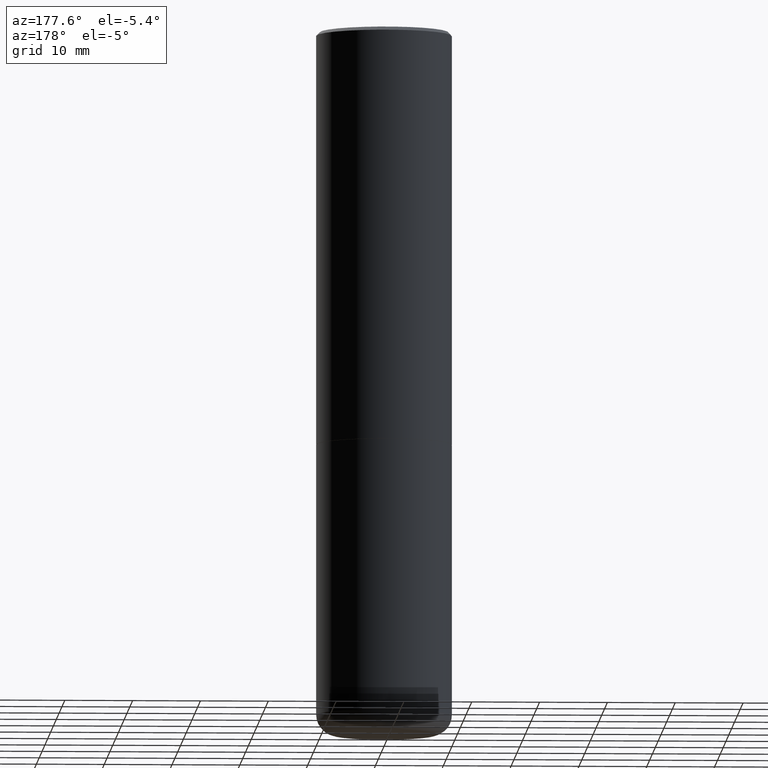
[diagram: clean part render]
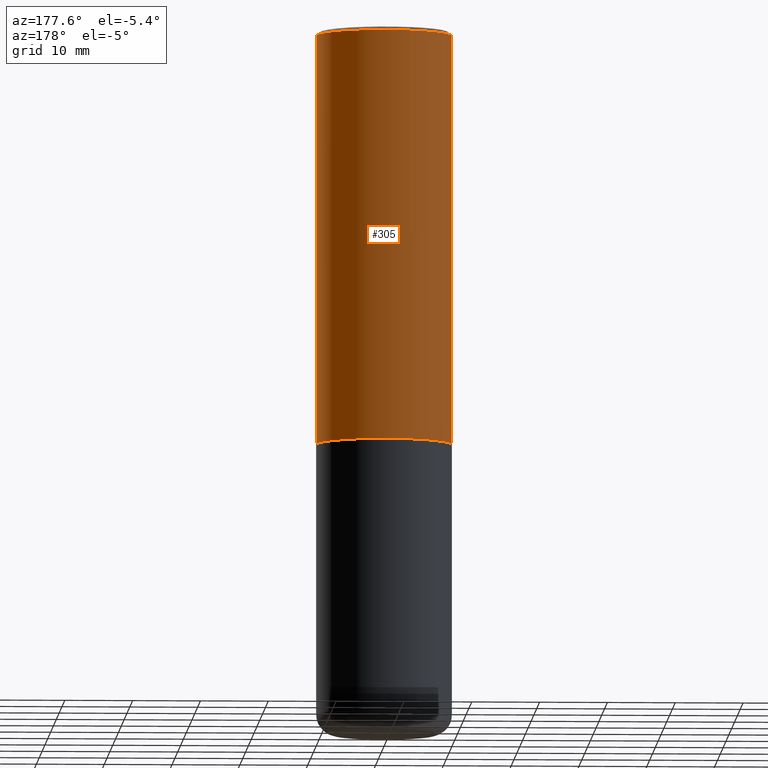
[diagram: same view with one face highlighted and labeled with its STEP entity id]
A machine part, auxiliary view. The second image highlights one B-rep face of the part: STEP entity #305.
In plain terms, the highlighted cylindrical surface (partial cylindrical patch) has radius 10 mm, axis along (-0, 0, 1).
Its self-contained STEP definition (entity closure, byte-faithful):
#6 = VECTOR ( 'NONE', #406, 39.37007874015748143 ) ;
#10 = DIRECTION ( 'NONE',  ( 1.000000000000000000, -6.982962677686265922E-15, 0.000000000000000000 ) ) ;
#22 = DIRECTION ( 'NONE',  ( 1.000000000000000000, -6.982962677686265922E-15, 0.000000000000000000 ) ) ;
#23 = EDGE_CURVE ( 'NONE', #192, #380, #417, .T. ) ;
#52 = CARTESIAN_POINT ( 'NONE',  ( -0.3937000000000000499, 2.679362779428219918E-15, -0.02000000000000008715 ) ) ;
#80 = AXIS2_PLACEMENT_3D ( 'NONE', #295, #364, #10 ) ;
#81 = CIRCLE ( 'NONE', #199, 0.3937000000000000499 ) ;
#83 = CARTESIAN_POINT ( 'NONE',  ( 4.890937612370294178E-31, -6.982962677686321191E-17, -0.02000000000000008715 ) ) ;
#114 = CARTESIAN_POINT ( 'NONE',  ( -0.3937000000000003830, -1.428333113714341032E-15, -2.400600000000000289 ) ) ;
#121 = DIRECTION ( 'NONE',  ( -2.445468806185136597E-29, 3.491481338843145583E-15, 1.000000000000000000 ) ) ;
#150 = FACE_OUTER_BOUND ( 'NONE', #339, .T. ) ;
#153 = CARTESIAN_POINT ( 'NONE',  ( -0.3937000000000001609, 2.797406750687515575E-15, -1.936584745033357296E-29 ) ) ;
#158 = CYLINDRICAL_SURFACE ( 'NONE', #328, 0.3937000000000001609 ) ;
#163 = ORIENTED_EDGE ( 'NONE', *, *, #335, .F. ) ;
#186 = DIRECTION ( 'NONE',  ( -2.445468806185136597E-29, 3.491481338843145583E-15, 1.000000000000000000 ) ) ;
#192 = VERTEX_POINT ( 'NONE', #368 ) ;
#195 = LINE ( 'NONE', #153, #6 ) ;
#199 = AXIS2_PLACEMENT_3D ( 'NONE', #83, #121, #22 ) ;
#226 = ORIENTED_EDGE ( 'NONE', *, *, #23, .T. ) ;
#246 = CARTESIAN_POINT ( 'NONE',  ( 0.000000000000000000, 0.000000000000000000, 0.000000000000000000 ) ) ;
#248 = ORIENTED_EDGE ( 'NONE', *, *, #399, .T. ) ;
#249 = DIRECTION ( 'NONE',  ( 1.000000000000000000, -6.982962677686266711E-15, 4.876176775795935793E-29 ) ) ;
#254 = VECTOR ( 'NONE', #276, 39.37007874015748143 ) ;
#276 = DIRECTION ( 'NONE',  ( -2.445468806185136877E-29, 3.491481338843145188E-15, 1.000000000000000000 ) ) ;
#283 = CARTESIAN_POINT ( 'NONE',  ( 0.3937000000000000499, -2.770807688499515734E-15, -0.02000000000000008715 ) ) ;
#295 = CARTESIAN_POINT ( 'NONE',  ( 5.870592416128038746E-29, -8.381650102026855834E-15, -2.400600000000000289 ) ) ;
#305 = ADVANCED_FACE ( 'NONE', ( #150 ), #158, .T. ) ;
#328 = AXIS2_PLACEMENT_3D ( 'NONE', #246, #186, #249 ) ;
#335 = EDGE_CURVE ( 'NONE', #192, #384, #377, .T. ) ;
#339 = EDGE_LOOP ( 'NONE', ( #226, #248, #376, #163 ) ) ;
#352 = EDGE_CURVE ( 'NONE', #384, #415, #81, .T. ) ;
#364 = DIRECTION ( 'NONE',  ( -2.445468806185136597E-29, 3.491481338843145583E-15, 1.000000000000000000 ) ) ;
#368 = CARTESIAN_POINT ( 'NONE',  ( 0.3937000000000002720, -1.113084250823194063E-14, -2.400600000000000289 ) ) ;
#376 = ORIENTED_EDGE ( 'NONE', *, *, #352, .F. ) ;
#377 = LINE ( 'NONE', #405, #254 ) ;
#380 = VERTEX_POINT ( 'NONE', #114 ) ;
#384 = VERTEX_POINT ( 'NONE', #283 ) ;
#399 = EDGE_CURVE ( 'NONE', #380, #415, #195, .T. ) ;
#405 = CARTESIAN_POINT ( 'NONE',  ( 0.3937000000000001609, -2.749192406205084400E-15, 1.919750796630860732E-29 ) ) ;
#406 = DIRECTION ( 'NONE',  ( -2.445468806185136877E-29, 3.491481338843145188E-15, 1.000000000000000000 ) ) ;
#415 = VERTEX_POINT ( 'NONE', #52 ) ;
#417 = CIRCLE ( 'NONE', #80, 0.3937000000000002720 ) ;